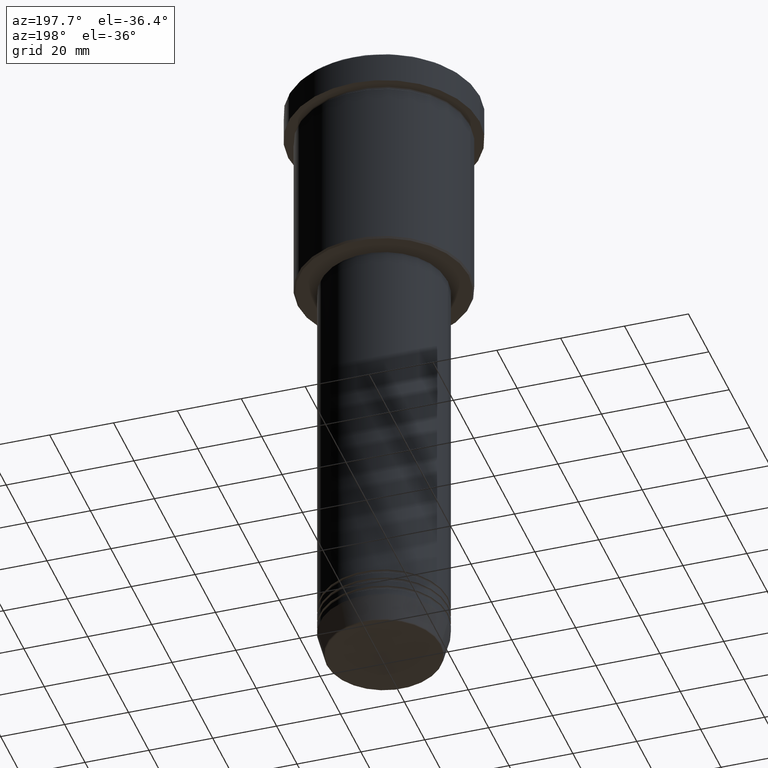
[diagram: clean part render]
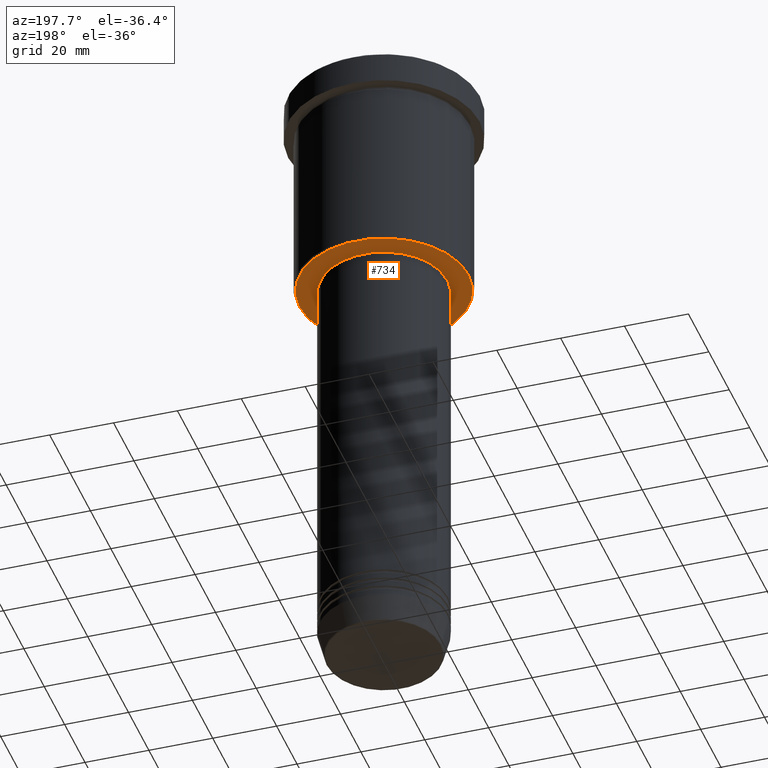
[diagram: same view with one face highlighted and labeled with its STEP entity id]
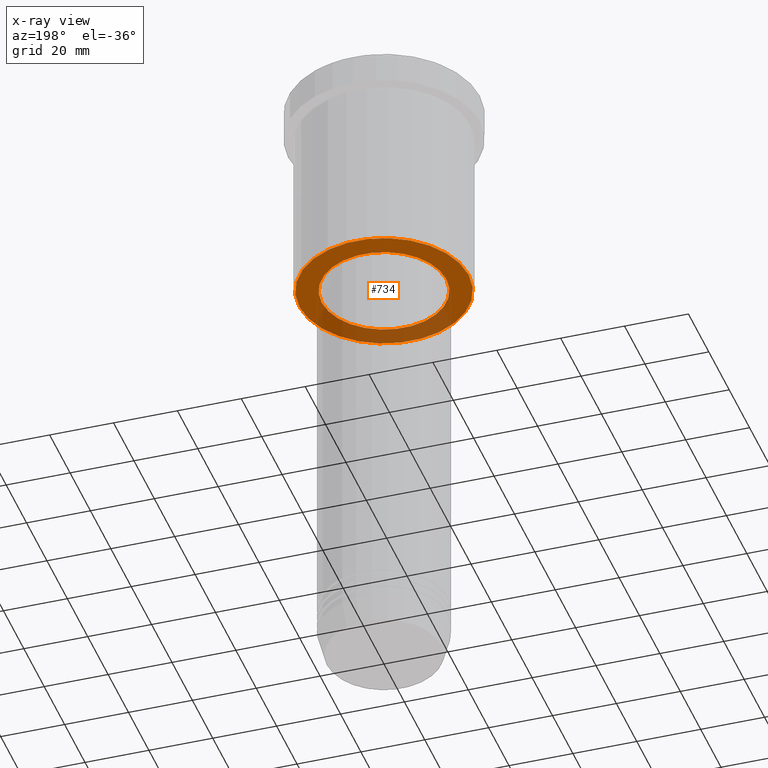
[diagram: x-ray of the same camera — body ghosted, the highlighted face saturated]
A machine part, auxiliary view. The second image highlights one B-rep face of the part: STEP entity #734.
The next image is the same camera in x-ray: the body ghosted, the highlighted face saturated — about 31% of this face is hidden behind the body in this view.
In plain terms, the highlighted planar face has unit normal (0, 0, -1).
Its self-contained STEP definition (entity closure, byte-faithful):
#6 = CARTESIAN_POINT ( 'NONE',  ( 0.000000000000000000, 0.000000000000000000, -66.00000000000001421 ) ) ;
#17 = ORIENTED_EDGE ( 'NONE', *, *, #207, .T. ) ;
#27 = PLANE ( 'NONE',  #285 ) ;
#75 = AXIS2_PLACEMENT_3D ( 'NONE', #149, #132, #144 ) ;
#88 = CARTESIAN_POINT ( 'NONE',  ( 0.000000000000000000, 0.000000000000000000, -66.00000000000001421 ) ) ;
#96 = EDGE_CURVE ( 'NONE', #789, #568, #570, .T. ) ;
#107 = DIRECTION ( 'NONE',  ( 0.000000000000000000, 0.000000000000000000, -1.000000000000000000 ) ) ;
#132 = DIRECTION ( 'NONE',  ( -0.000000000000000000, -0.000000000000000000, 1.000000000000000000 ) ) ;
#133 = CARTESIAN_POINT ( 'NONE',  ( 19.50000000000000000, 0.000000000000000000, -66.00000000000001421 ) ) ;
#144 = DIRECTION ( 'NONE',  ( 1.000000000000000000, 0.000000000000000000, 0.000000000000000000 ) ) ;
#149 = CARTESIAN_POINT ( 'NONE',  ( 0.000000000000000000, 0.000000000000000000, -66.00000000000001421 ) ) ;
#199 = VERTEX_POINT ( 'NONE', #1113 ) ;
#207 = EDGE_CURVE ( 'NONE', #911, #199, #952, .T. ) ;
#255 = AXIS2_PLACEMENT_3D ( 'NONE', #922, #107, #473 ) ;
#269 = AXIS2_PLACEMENT_3D ( 'NONE', #6, #913, #379 ) ;
#285 = AXIS2_PLACEMENT_3D ( 'NONE', #900, #736, #648 ) ;
#288 = CARTESIAN_POINT ( 'NONE',  ( 26.49999999999999645, 0.000000000000000000, -66.00000000000001421 ) ) ;
#299 = AXIS2_PLACEMENT_3D ( 'NONE', #88, #768, #1046 ) ;
#307 = FACE_OUTER_BOUND ( 'NONE', #1025, .T. ) ;
#379 = DIRECTION ( 'NONE',  ( 1.000000000000000000, 0.000000000000000000, 0.000000000000000000 ) ) ;
#462 = ORIENTED_EDGE ( 'NONE', *, *, #983, .T. ) ;
#473 = DIRECTION ( 'NONE',  ( -1.000000000000000000, 0.000000000000000000, 0.000000000000000000 ) ) ;
#568 = VERTEX_POINT ( 'NONE', #954 ) ;
#570 = CIRCLE ( 'NONE', #299, 26.49999999999999645 ) ;
#610 = ORIENTED_EDGE ( 'NONE', *, *, #96, .T. ) ;
#648 = DIRECTION ( 'NONE',  ( -1.000000000000000000, 0.000000000000000000, -0.000000000000000000 ) ) ;
#722 = CIRCLE ( 'NONE', #255, 26.49999999999999645 ) ;
#734 = ADVANCED_FACE ( 'NONE', ( #307, #934 ), #27, .T. ) ;
#736 = DIRECTION ( 'NONE',  ( 0.000000000000000000, 0.000000000000000000, -1.000000000000000000 ) ) ;
#766 = CIRCLE ( 'NONE', #269, 19.50000000000000000 ) ;
#768 = DIRECTION ( 'NONE',  ( 0.000000000000000000, 0.000000000000000000, -1.000000000000000000 ) ) ;
#789 = VERTEX_POINT ( 'NONE', #288 ) ;
#809 = EDGE_CURVE ( 'NONE', #199, #911, #766, .T. ) ;
#900 = CARTESIAN_POINT ( 'NONE',  ( 0.000000000000000000, 27.00000000000000355, -66.00000000000001421 ) ) ;
#911 = VERTEX_POINT ( 'NONE', #133 ) ;
#913 = DIRECTION ( 'NONE',  ( -0.000000000000000000, -0.000000000000000000, 1.000000000000000000 ) ) ;
#922 = CARTESIAN_POINT ( 'NONE',  ( 0.000000000000000000, 0.000000000000000000, -66.00000000000001421 ) ) ;
#934 = FACE_BOUND ( 'NONE', #1080, .T. ) ;
#952 = CIRCLE ( 'NONE', #75, 19.50000000000000000 ) ;
#954 = CARTESIAN_POINT ( 'NONE',  ( -26.49999999999999645, 3.275930187719169552E-15, -66.00000000000001421 ) ) ;
#983 = EDGE_CURVE ( 'NONE', #568, #789, #722, .T. ) ;
#1025 = EDGE_LOOP ( 'NONE', ( #610, #462 ) ) ;
#1046 = DIRECTION ( 'NONE',  ( -1.000000000000000000, 0.000000000000000000, 0.000000000000000000 ) ) ;
#1080 = EDGE_LOOP ( 'NONE', ( #17, #1182 ) ) ;
#1113 = CARTESIAN_POINT ( 'NONE',  ( -19.50000000000000000, 2.388061258337338939E-15, -66.00000000000001421 ) ) ;
#1182 = ORIENTED_EDGE ( 'NONE', *, *, #809, .T. ) ;